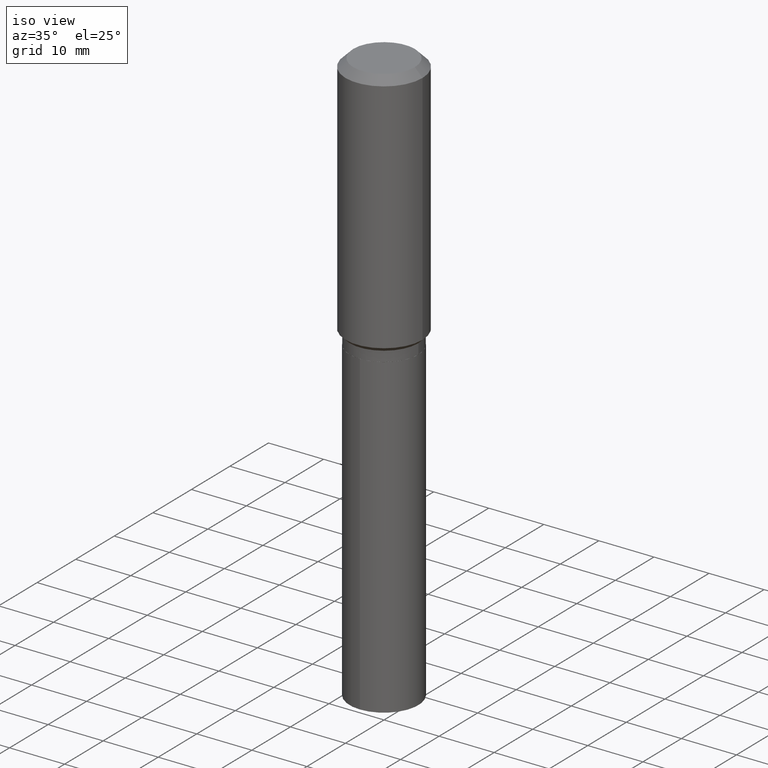
[diagram: clean part render]
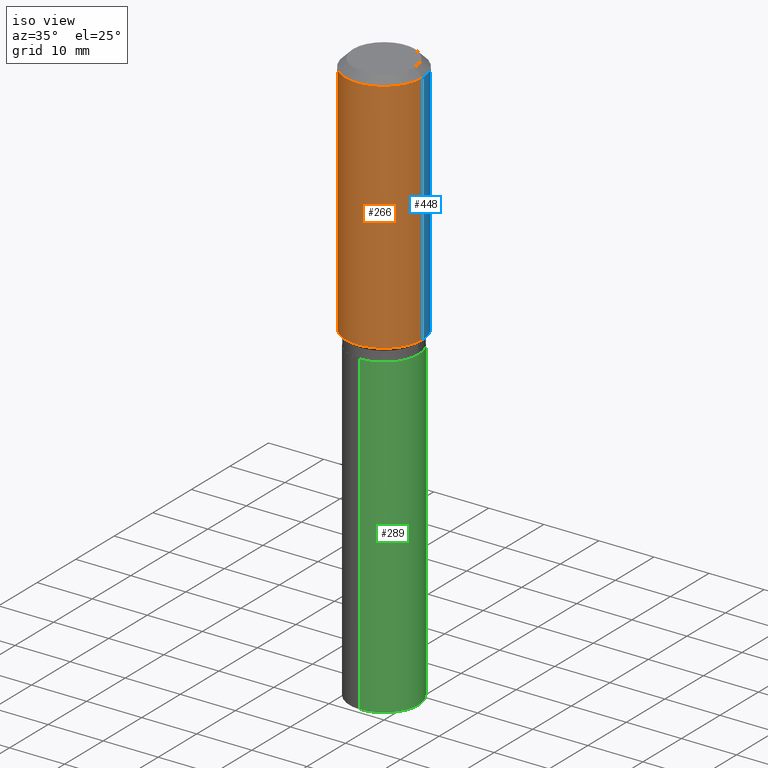
[diagram: same view with three faces highlighted in distinct colors, each labeled with its STEP entity id]
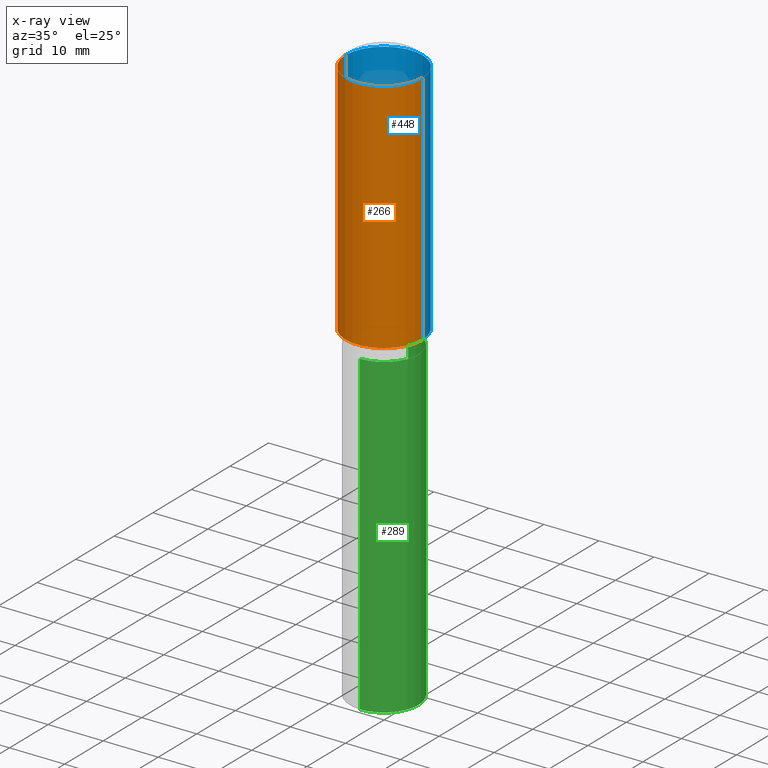
[diagram: x-ray of the same camera — body ghosted, the three highlighted faces saturated]
A machine part, iso view with three faces highlighted in distinct colors.
The next image is the same camera in x-ray (body ghosted, the three faces saturated) — at least one of them is partly hidden behind the body in this view.
Their STEP definitions:

[orange] entity #266 — the highlighted cylindrical surface (partial cylindrical patch) has radius 7.0002 mm, axis along (-0, 0, 1).
#15 = CARTESIAN_POINT ( 'NONE',  ( 0.2756000000000001227, -1.924504513970336137E-15, 1.343874319409360548E-29 ) ) ;
#17 = AXIS2_PLACEMENT_3D ( 'NONE', #133, #281, #439 ) ;
#20 = DIRECTION ( 'NONE',  ( -2.445468806185136597E-29, 3.491481338843145583E-15, 1.000000000000000000 ) ) ;
#46 = CIRCLE ( 'NONE', #17, 0.2756000000000001782 ) ;
#53 = VERTEX_POINT ( 'NONE', #265 ) ;
#55 = LINE ( 'NONE', #15, #262 ) ;
#62 = CARTESIAN_POINT ( 'NONE',  ( 1.347942405969256063E-30, -1.924504513970354330E-16, -0.05512000000000035621 ) ) ;
#65 = CARTESIAN_POINT ( 'NONE',  ( 0.2756000000000001782, -8.024296986996253937E-15, -1.747050000000000214 ) ) ;
#119 = CARTESIAN_POINT ( 'NONE',  ( 0.2756000000000000116, -2.116954965367370658E-15, -0.05512000000000035621 ) ) ;
#125 = ORIENTED_EDGE ( 'NONE', *, *, #472, .T. ) ;
#133 = CARTESIAN_POINT ( 'NONE',  ( 4.272356277845743309E-29, -6.099792473025918194E-15, -1.747050000000000214 ) ) ;
#171 = VERTEX_POINT ( 'NONE', #397 ) ;
#173 = EDGE_CURVE ( 'NONE', #452, #322, #55, .T. ) ;
#179 = CARTESIAN_POINT ( 'NONE',  ( -0.2756000000000001227, 1.958255779754836984E-15, -1.355658510874252567E-29 ) ) ;
#180 = ORIENTED_EDGE ( 'NONE', *, *, #384, .F. ) ;
#219 = CIRCLE ( 'NONE', #459, 0.2756000000000000116 ) ;
#262 = VECTOR ( 'NONE', #429, 39.37007874015748143 ) ;
#263 = VECTOR ( 'NONE', #487, 39.37007874015748143 ) ;
#265 = CARTESIAN_POINT ( 'NONE',  ( -0.2756000000000000116, -1.187865682456639571E-15, -0.05512000000000035621 ) ) ;
#266 = ADVANCED_FACE ( 'NONE', ( #272 ), #268, .T. ) ;
#267 = DIRECTION ( 'NONE',  ( 1.000000000000000000, -6.982962677686267499E-15, 4.876176775795935793E-29 ) ) ;
#268 = CYLINDRICAL_SURFACE ( 'NONE', #353, 0.2756000000000001227 ) ;
#272 = FACE_OUTER_BOUND ( 'NONE', #295, .T. ) ;
#275 = ORIENTED_EDGE ( 'NONE', *, *, #386, .F. ) ;
#281 = DIRECTION ( 'NONE',  ( -2.445468806185136597E-29, 3.491481338843145583E-15, 1.000000000000000000 ) ) ;
#293 = DIRECTION ( 'NONE',  ( 1.000000000000000000, -6.982962677686265922E-15, 0.000000000000000000 ) ) ;
#295 = EDGE_LOOP ( 'NONE', ( #180, #125, #447, #275 ) ) ;
#321 = LINE ( 'NONE', #179, #263 ) ;
#322 = VERTEX_POINT ( 'NONE', #119 ) ;
#353 = AXIS2_PLACEMENT_3D ( 'NONE', #427, #20, #267 ) ;
#384 = EDGE_CURVE ( 'NONE', #171, #53, #321, .T. ) ;
#386 = EDGE_CURVE ( 'NONE', #53, #322, #219, .T. ) ;
#397 = CARTESIAN_POINT ( 'NONE',  ( -0.2756000000000001782, -4.141536693271080027E-15, -1.747050000000000214 ) ) ;
#409 = DIRECTION ( 'NONE',  ( -2.445468806185136597E-29, 3.491481338843145583E-15, 1.000000000000000000 ) ) ;
#427 = CARTESIAN_POINT ( 'NONE',  ( 0.000000000000000000, 0.000000000000000000, 0.000000000000000000 ) ) ;
#429 = DIRECTION ( 'NONE',  ( -2.445468806185136877E-29, 3.491481338843145188E-15, 1.000000000000000000 ) ) ;
#439 = DIRECTION ( 'NONE',  ( 1.000000000000000000, -6.982962677686265922E-15, 0.000000000000000000 ) ) ;
#447 = ORIENTED_EDGE ( 'NONE', *, *, #173, .T. ) ;
#452 = VERTEX_POINT ( 'NONE', #65 ) ;
#459 = AXIS2_PLACEMENT_3D ( 'NONE', #62, #409, #293 ) ;
#472 = EDGE_CURVE ( 'NONE', #171, #452, #46, .T. ) ;
#487 = DIRECTION ( 'NONE',  ( -2.445468806185136877E-29, 3.491481338843145188E-15, 1.000000000000000000 ) ) ;

[blue] entity #448 — the highlighted cylindrical surface (partial cylindrical patch) has radius 7.0002 mm, axis along (-0, 0, 1).
#15 = CARTESIAN_POINT ( 'NONE',  ( 0.2756000000000001227, -1.924504513970336137E-15, 1.343874319409360548E-29 ) ) ;
#30 = ORIENTED_EDGE ( 'NONE', *, *, #75, .T. ) ;
#32 = DIRECTION ( 'NONE',  ( -2.445468806185136597E-29, 3.491481338843145583E-15, 1.000000000000000000 ) ) ;
#53 = VERTEX_POINT ( 'NONE', #265 ) ;
#55 = LINE ( 'NONE', #15, #262 ) ;
#56 = AXIS2_PLACEMENT_3D ( 'NONE', #139, #32, #398 ) ;
#65 = CARTESIAN_POINT ( 'NONE',  ( 0.2756000000000001782, -8.024296986996253937E-15, -1.747050000000000214 ) ) ;
#75 = EDGE_CURVE ( 'NONE', #452, #171, #140, .T. ) ;
#79 = CARTESIAN_POINT ( 'NONE',  ( 4.272356277845743309E-29, -6.099792473025918194E-15, -1.747050000000000214 ) ) ;
#100 = ORIENTED_EDGE ( 'NONE', *, *, #384, .T. ) ;
#119 = CARTESIAN_POINT ( 'NONE',  ( 0.2756000000000000116, -2.116954965367370658E-15, -0.05512000000000035621 ) ) ;
#134 = ORIENTED_EDGE ( 'NONE', *, *, #276, .F. ) ;
#139 = CARTESIAN_POINT ( 'NONE',  ( 0.000000000000000000, 0.000000000000000000, 0.000000000000000000 ) ) ;
#140 = CIRCLE ( 'NONE', #336, 0.2756000000000001782 ) ;
#142 = CIRCLE ( 'NONE', #381, 0.2756000000000000116 ) ;
#149 = DIRECTION ( 'NONE',  ( 1.000000000000000000, -6.982962677686265922E-15, 0.000000000000000000 ) ) ;
#164 = ORIENTED_EDGE ( 'NONE', *, *, #173, .F. ) ;
#169 = FACE_OUTER_BOUND ( 'NONE', #373, .T. ) ;
#171 = VERTEX_POINT ( 'NONE', #397 ) ;
#173 = EDGE_CURVE ( 'NONE', #452, #322, #55, .T. ) ;
#179 = CARTESIAN_POINT ( 'NONE',  ( -0.2756000000000001227, 1.958255779754836984E-15, -1.355658510874252567E-29 ) ) ;
#198 = CARTESIAN_POINT ( 'NONE',  ( 1.347942405969256063E-30, -1.924504513970354330E-16, -0.05512000000000035621 ) ) ;
#214 = CYLINDRICAL_SURFACE ( 'NONE', #56, 0.2756000000000001227 ) ;
#262 = VECTOR ( 'NONE', #429, 39.37007874015748143 ) ;
#263 = VECTOR ( 'NONE', #487, 39.37007874015748143 ) ;
#265 = CARTESIAN_POINT ( 'NONE',  ( -0.2756000000000000116, -1.187865682456639571E-15, -0.05512000000000035621 ) ) ;
#276 = EDGE_CURVE ( 'NONE', #322, #53, #142, .T. ) ;
#277 = DIRECTION ( 'NONE',  ( -2.445468806185136597E-29, 3.491481338843145583E-15, 1.000000000000000000 ) ) ;
#321 = LINE ( 'NONE', #179, #263 ) ;
#322 = VERTEX_POINT ( 'NONE', #119 ) ;
#336 = AXIS2_PLACEMENT_3D ( 'NONE', #79, #342, #149 ) ;
#342 = DIRECTION ( 'NONE',  ( -2.445468806185136597E-29, 3.491481338843145583E-15, 1.000000000000000000 ) ) ;
#373 = EDGE_LOOP ( 'NONE', ( #30, #100, #134, #164 ) ) ;
#381 = AXIS2_PLACEMENT_3D ( 'NONE', #198, #277, #473 ) ;
#384 = EDGE_CURVE ( 'NONE', #171, #53, #321, .T. ) ;
#397 = CARTESIAN_POINT ( 'NONE',  ( -0.2756000000000001782, -4.141536693271080027E-15, -1.747050000000000214 ) ) ;
#398 = DIRECTION ( 'NONE',  ( 1.000000000000000000, -6.982962677686267499E-15, 4.876176775795935793E-29 ) ) ;
#429 = DIRECTION ( 'NONE',  ( -2.445468806185136877E-29, 3.491481338843145188E-15, 1.000000000000000000 ) ) ;
#448 = ADVANCED_FACE ( 'NONE', ( #169 ), #214, .T. ) ;
#452 = VERTEX_POINT ( 'NONE', #65 ) ;
#473 = DIRECTION ( 'NONE',  ( 1.000000000000000000, -6.982962677686265922E-15, 0.000000000000000000 ) ) ;
#487 = DIRECTION ( 'NONE',  ( -2.445468806185136877E-29, 3.491481338843145188E-15, 1.000000000000000000 ) ) ;

[green] entity #289 — the highlighted cylindrical surface (partial cylindrical patch) has radius 6.2497 mm, axis along (-0, 0, 1).
#28 = ORIENTED_EDGE ( 'NONE', *, *, #83, .T. ) ;
#60 = LINE ( 'NONE', #177, #225 ) ;
#69 = VERTEX_POINT ( 'NONE', #387 ) ;
#83 = EDGE_CURVE ( 'NONE', #69, #162, #298, .T. ) ;
#95 = VERTEX_POINT ( 'NONE', #421 ) ;
#107 = CARTESIAN_POINT ( 'NONE',  ( 1.748290401337827023E-15, 0.2460499999999856136, -4.115678327474944886 ) ) ;
#115 = DIRECTION ( 'NONE',  ( -6.982962677686265922E-15, -1.000000000000000000, 4.441126589984577246E-15 ) ) ;
#120 = CYLINDRICAL_SURFACE ( 'NONE', #287, 0.2460499999999999909 ) ;
#144 = ORIENTED_EDGE ( 'NONE', *, *, #343, .F. ) ;
#160 = DIRECTION ( 'NONE',  ( -6.982962677686265922E-15, -1.000000000000000000, 3.330844942488433132E-15 ) ) ;
#162 = VERTEX_POINT ( 'NONE', #107 ) ;
#177 = CARTESIAN_POINT ( 'NONE',  ( -1.718157966844660576E-15, -0.2460500000000064580, -1.850399999999999823 ) ) ;
#195 = CIRCLE ( 'NONE', #318, 0.2460499999999999909 ) ;
#197 = DIRECTION ( 'NONE',  ( -6.982962677686265922E-15, -1.000000000000000000, 3.330844942488433132E-15 ) ) ;
#204 = DIRECTION ( 'NONE',  ( -2.445689454442209715E-29, 3.491165357980497875E-15, 1.000000000000000000 ) ) ;
#217 = LINE ( 'NONE', #372, #346 ) ;
#223 = DIRECTION ( 'NONE',  ( -2.445689454442209715E-29, 3.491165357980497875E-15, 1.000000000000000000 ) ) ;
#225 = VECTOR ( 'NONE', #241, 39.37007874015748143 ) ;
#234 = VERTEX_POINT ( 'NONE', #313 ) ;
#241 = DIRECTION ( 'NONE',  ( -2.445689454442209715E-29, 3.491165357980497875E-15, 1.000000000000000000 ) ) ;
#248 = DIRECTION ( 'NONE',  ( -2.445689454442209715E-29, 3.491165357980497875E-15, 1.000000000000000000 ) ) ;
#257 = EDGE_CURVE ( 'NONE', #95, #234, #195, .T. ) ;
#274 = CARTESIAN_POINT ( 'NONE',  ( 4.525095478964978515E-29, -6.460637069395359943E-15, -1.850400000000000933 ) ) ;
#287 = AXIS2_PLACEMENT_3D ( 'NONE', #395, #463, #197 ) ;
#289 = ADVANCED_FACE ( 'NONE', ( #309 ), #120, .T. ) ;
#298 = CIRCLE ( 'NONE', #360, 0.2460499999999999909 ) ;
#309 = FACE_OUTER_BOUND ( 'NONE', #441, .T. ) ;
#313 = CARTESIAN_POINT ( 'NONE',  ( 1.748290401337827417E-15, 0.2460499999999935794, -1.850400000000001599 ) ) ;
#318 = AXIS2_PLACEMENT_3D ( 'NONE', #274, #204, #160 ) ;
#334 = CARTESIAN_POINT ( 'NONE',  ( 1.006526279584693269E-28, -1.436909829245988232E-14, -4.115678327474943998 ) ) ;
#343 = EDGE_CURVE ( 'NONE', #69, #95, #60, .T. ) ;
#346 = VECTOR ( 'NONE', #248, 39.37007874015748143 ) ;
#360 = AXIS2_PLACEMENT_3D ( 'NONE', #334, #223, #115 ) ;
#372 = CARTESIAN_POINT ( 'NONE',  ( 1.748290401337771408E-15, 0.2460499999999935516, -1.850400000000001377 ) ) ;
#387 = CARTESIAN_POINT ( 'NONE',  ( -1.718157966844604764E-15, -0.2460500000000143406, -4.115678327474942222 ) ) ;
#395 = CARTESIAN_POINT ( 'NONE',  ( 4.525095478964977954E-29, -6.460637069395358365E-15, -1.850400000000000489 ) ) ;
#421 = CARTESIAN_POINT ( 'NONE',  ( -1.718157966844660576E-15, -0.2460500000000064580, -1.850400000000000045 ) ) ;
#423 = ORIENTED_EDGE ( 'NONE', *, *, #437, .T. ) ;
#428 = ORIENTED_EDGE ( 'NONE', *, *, #257, .F. ) ;
#437 = EDGE_CURVE ( 'NONE', #162, #234, #217, .T. ) ;
#441 = EDGE_LOOP ( 'NONE', ( #28, #423, #428, #144 ) ) ;
#463 = DIRECTION ( 'NONE',  ( -2.445689454442209715E-29, 3.491165357980497875E-15, 1.000000000000000000 ) ) ;